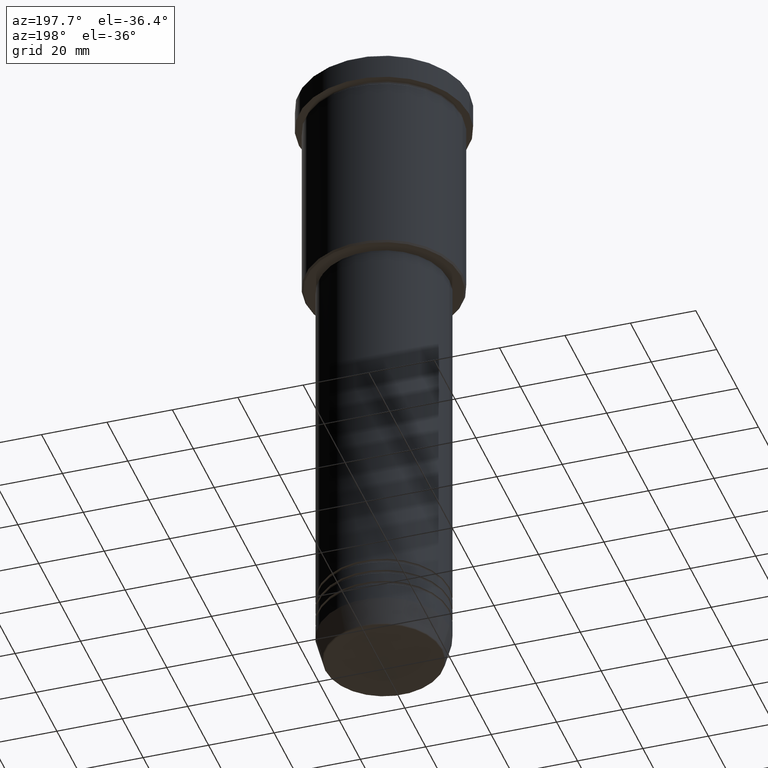
[diagram: clean part render]
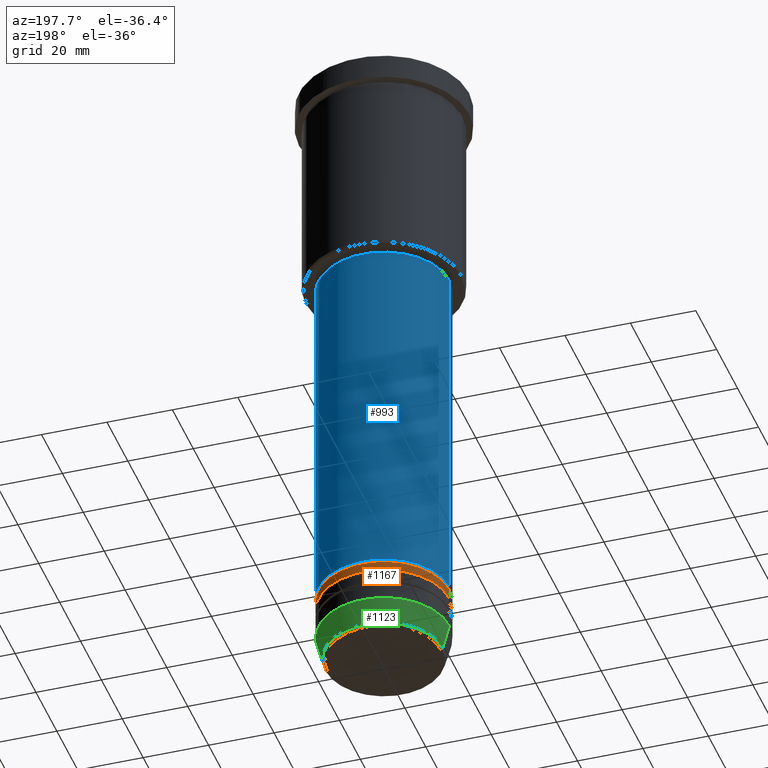
[diagram: same view with three faces highlighted in distinct colors, each labeled with its STEP entity id]
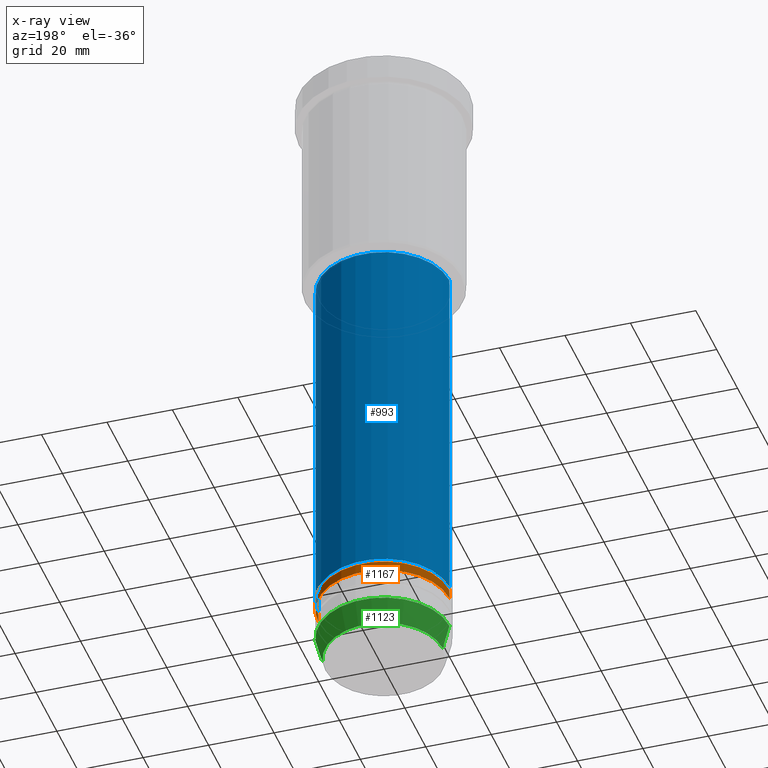
[diagram: x-ray of the same camera — body ghosted, the three highlighted faces saturated]
A machine part, auxiliary view with three faces highlighted in distinct colors.
The next image is the same camera in x-ray (body ghosted, the three faces saturated) — at least one of them is partly hidden behind the body in this view.
Their STEP definitions:

[orange] entity #1167 — the highlighted cylindrical surface (partial cylindrical patch) has radius 20 mm, axis along (-0, -0, 1).
#8 = DIRECTION ( 'NONE',  ( -0.000000000000000000, -0.000000000000000000, 1.000000000000000000 ) ) ;
#39 = CARTESIAN_POINT ( 'NONE',  ( 0.000000000000000000, 0.000000000000000000, -179.0000000000000284 ) ) ;
#41 = AXIS2_PLACEMENT_3D ( 'NONE', #438, #1088, #1172 ) ;
#56 = CARTESIAN_POINT ( 'NONE',  ( 20.00000000000000000, 0.000000000000000000, -179.0000000000000284 ) ) ;
#90 = DIRECTION ( 'NONE',  ( -0.000000000000000000, -0.000000000000000000, 1.000000000000000000 ) ) ;
#176 = EDGE_CURVE ( 'NONE', #481, #788, #912, .T. ) ;
#211 = ORIENTED_EDGE ( 'NONE', *, *, #772, .F. ) ;
#295 = CYLINDRICAL_SURFACE ( 'NONE', #1080, 20.00000000000000355 ) ;
#353 = DIRECTION ( 'NONE',  ( -0.000000000000000000, -0.000000000000000000, 1.000000000000000000 ) ) ;
#381 = FACE_OUTER_BOUND ( 'NONE', #887, .T. ) ;
#408 = EDGE_CURVE ( 'NONE', #526, #788, #809, .T. ) ;
#438 = CARTESIAN_POINT ( 'NONE',  ( 0.000000000000000000, 0.000000000000000000, -182.0000000000000284 ) ) ;
#449 = CARTESIAN_POINT ( 'NONE',  ( -20.00000000000000355, 2.449293598294706907E-15, 0.000000000000000000 ) ) ;
#478 = ORIENTED_EDGE ( 'NONE', *, *, #408, .F. ) ;
#481 = VERTEX_POINT ( 'NONE', #959 ) ;
#507 = DIRECTION ( 'NONE',  ( -0.000000000000000000, -0.000000000000000000, 1.000000000000000000 ) ) ;
#517 = VECTOR ( 'NONE', #353, 1000.000000000000000 ) ;
#526 = VERTEX_POINT ( 'NONE', #56 ) ;
#574 = DIRECTION ( 'NONE',  ( 1.000000000000000000, 0.000000000000000000, 0.000000000000000000 ) ) ;
#583 = EDGE_CURVE ( 'NONE', #1000, #481, #1078, .T. ) ;
#593 = AXIS2_PLACEMENT_3D ( 'NONE', #39, #507, #574 ) ;
#664 = ORIENTED_EDGE ( 'NONE', *, *, #176, .T. ) ;
#732 = LINE ( 'NONE', #1178, #1040 ) ;
#772 = EDGE_CURVE ( 'NONE', #1000, #526, #732, .T. ) ;
#788 = VERTEX_POINT ( 'NONE', #953 ) ;
#809 = CIRCLE ( 'NONE', #593, 20.00000000000000000 ) ;
#887 = EDGE_LOOP ( 'NONE', ( #1103, #664, #478, #211 ) ) ;
#912 = LINE ( 'NONE', #449, #517 ) ;
#932 = CARTESIAN_POINT ( 'NONE',  ( 0.000000000000000000, 0.000000000000000000, 0.000000000000000000 ) ) ;
#951 = DIRECTION ( 'NONE',  ( 1.000000000000000000, 0.000000000000000000, 0.000000000000000000 ) ) ;
#953 = CARTESIAN_POINT ( 'NONE',  ( -20.00000000000000000, 2.449293598294706513E-15, -179.0000000000000284 ) ) ;
#959 = CARTESIAN_POINT ( 'NONE',  ( -20.00000000000000355, 2.449293598294706907E-15, -182.0000000000000284 ) ) ;
#1000 = VERTEX_POINT ( 'NONE', #1151 ) ;
#1040 = VECTOR ( 'NONE', #8, 1000.000000000000000 ) ;
#1078 = CIRCLE ( 'NONE', #41, 20.00000000000000355 ) ;
#1080 = AXIS2_PLACEMENT_3D ( 'NONE', #932, #90, #951 ) ;
#1088 = DIRECTION ( 'NONE',  ( -0.000000000000000000, -0.000000000000000000, 1.000000000000000000 ) ) ;
#1103 = ORIENTED_EDGE ( 'NONE', *, *, #583, .T. ) ;
#1151 = CARTESIAN_POINT ( 'NONE',  ( 20.00000000000000355, 0.000000000000000000, -182.0000000000000284 ) ) ;
#1167 = ADVANCED_FACE ( 'NONE', ( #381 ), #295, .T. ) ;
#1172 = DIRECTION ( 'NONE',  ( 1.000000000000000000, 0.000000000000000000, 0.000000000000000000 ) ) ;
#1178 = CARTESIAN_POINT ( 'NONE',  ( 20.00000000000000355, 0.000000000000000000, 0.000000000000000000 ) ) ;

[blue] entity #993 — the highlighted cylindrical surface (partial cylindrical patch) has radius 20 mm, axis along (-0, -0, 1).
#19 = EDGE_LOOP ( 'NONE', ( #876, #153, #370, #503 ) ) ;
#49 = LINE ( 'NONE', #765, #212 ) ;
#54 = EDGE_CURVE ( 'NONE', #419, #1072, #707, .T. ) ;
#60 = EDGE_CURVE ( 'NONE', #718, #687, #49, .T. ) ;
#96 = AXIS2_PLACEMENT_3D ( 'NONE', #762, #1129, #499 ) ;
#127 = DIRECTION ( 'NONE',  ( -0.000000000000000000, -0.000000000000000000, 1.000000000000000000 ) ) ;
#136 = AXIS2_PLACEMENT_3D ( 'NONE', #789, #919, #974 ) ;
#153 = ORIENTED_EDGE ( 'NONE', *, *, #54, .T. ) ;
#212 = VECTOR ( 'NONE', #127, 1000.000000000000000 ) ;
#218 = CARTESIAN_POINT ( 'NONE',  ( 0.000000000000000000, 0.000000000000000000, -178.0000000000000284 ) ) ;
#293 = DIRECTION ( 'NONE',  ( 1.000000000000000000, 0.000000000000000000, 0.000000000000000000 ) ) ;
#336 = DIRECTION ( 'NONE',  ( -0.000000000000000000, -0.000000000000000000, 1.000000000000000000 ) ) ;
#370 = ORIENTED_EDGE ( 'NONE', *, *, #800, .F. ) ;
#419 = VERTEX_POINT ( 'NONE', #590 ) ;
#445 = CIRCLE ( 'NONE', #96, 20.00000000000000355 ) ;
#467 = EDGE_CURVE ( 'NONE', #718, #419, #733, .T. ) ;
#499 = DIRECTION ( 'NONE',  ( 1.000000000000000000, 0.000000000000000000, 0.000000000000000000 ) ) ;
#503 = ORIENTED_EDGE ( 'NONE', *, *, #60, .F. ) ;
#532 = FACE_OUTER_BOUND ( 'NONE', #19, .T. ) ;
#590 = CARTESIAN_POINT ( 'NONE',  ( -20.00000000000000355, 2.449293598294706907E-15, -178.0000000000000284 ) ) ;
#687 = VERTEX_POINT ( 'NONE', #1107 ) ;
#707 = LINE ( 'NONE', #1052, #1018 ) ;
#718 = VERTEX_POINT ( 'NONE', #926 ) ;
#733 = CIRCLE ( 'NONE', #1023, 20.00000000000000355 ) ;
#762 = CARTESIAN_POINT ( 'NONE',  ( 0.000000000000000000, 0.000000000000000000, -67.00000000000002842 ) ) ;
#765 = CARTESIAN_POINT ( 'NONE',  ( 20.00000000000000355, 0.000000000000000000, 0.000000000000000000 ) ) ;
#789 = CARTESIAN_POINT ( 'NONE',  ( 0.000000000000000000, 0.000000000000000000, 0.000000000000000000 ) ) ;
#800 = EDGE_CURVE ( 'NONE', #687, #1072, #445, .T. ) ;
#825 = CARTESIAN_POINT ( 'NONE',  ( -20.00000000000000355, 2.449293598294706907E-15, -67.00000000000002842 ) ) ;
#876 = ORIENTED_EDGE ( 'NONE', *, *, #467, .T. ) ;
#886 = CYLINDRICAL_SURFACE ( 'NONE', #136, 20.00000000000000355 ) ;
#919 = DIRECTION ( 'NONE',  ( -0.000000000000000000, -0.000000000000000000, 1.000000000000000000 ) ) ;
#926 = CARTESIAN_POINT ( 'NONE',  ( 20.00000000000000355, 0.000000000000000000, -178.0000000000000284 ) ) ;
#954 = DIRECTION ( 'NONE',  ( -0.000000000000000000, -0.000000000000000000, 1.000000000000000000 ) ) ;
#974 = DIRECTION ( 'NONE',  ( 1.000000000000000000, 0.000000000000000000, 0.000000000000000000 ) ) ;
#993 = ADVANCED_FACE ( 'NONE', ( #532 ), #886, .T. ) ;
#1018 = VECTOR ( 'NONE', #336, 1000.000000000000000 ) ;
#1023 = AXIS2_PLACEMENT_3D ( 'NONE', #218, #954, #293 ) ;
#1052 = CARTESIAN_POINT ( 'NONE',  ( -20.00000000000000355, 2.449293598294706907E-15, 0.000000000000000000 ) ) ;
#1072 = VERTEX_POINT ( 'NONE', #825 ) ;
#1107 = CARTESIAN_POINT ( 'NONE',  ( 20.00000000000000355, 0.000000000000000000, -67.00000000000002842 ) ) ;
#1129 = DIRECTION ( 'NONE',  ( -0.000000000000000000, -0.000000000000000000, 1.000000000000000000 ) ) ;

[green] entity #1123 — the highlighted conical surface has half-angle 15 deg.
#38 = EDGE_CURVE ( 'NONE', #941, #1020, #107, .T. ) ;
#107 = LINE ( 'NONE', #515, #848 ) ;
#137 = CARTESIAN_POINT ( 'NONE',  ( 20.00000000000000355, 0.000000000000000000, -192.0000000000000284 ) ) ;
#149 = ORIENTED_EDGE ( 'NONE', *, *, #969, .F. ) ;
#171 = VECTOR ( 'NONE', #238, 1000.000000000000000 ) ;
#199 = CARTESIAN_POINT ( 'NONE',  ( 20.00000000000000355, 0.000000000000000000, -192.0000000000000284 ) ) ;
#206 = FACE_OUTER_BOUND ( 'NONE', #1017, .T. ) ;
#216 = CIRCLE ( 'NONE', #870, 20.00000000000000355 ) ;
#238 = DIRECTION ( 'NONE',  ( 0.2588190451025213501, 0.000000000000000000, 0.9659258262890680902 ) ) ;
#288 = DIRECTION ( 'NONE',  ( -0.000000000000000000, -0.000000000000000000, 1.000000000000000000 ) ) ;
#297 = ORIENTED_EDGE ( 'NONE', *, *, #301, .T. ) ;
#301 = EDGE_CURVE ( 'NONE', #722, #941, #402, .T. ) ;
#377 = CARTESIAN_POINT ( 'NONE',  ( 0.000000000000000000, 0.000000000000000000, -199.6294095225512990 ) ) ;
#402 = CIRCLE ( 'NONE', #1136, 17.95570587970607690 ) ;
#455 = DIRECTION ( 'NONE',  ( -0.000000000000000000, -0.000000000000000000, 1.000000000000000000 ) ) ;
#476 = DIRECTION ( 'NONE',  ( -0.000000000000000000, -0.000000000000000000, 1.000000000000000000 ) ) ;
#485 = CARTESIAN_POINT ( 'NONE',  ( 0.000000000000000000, 0.000000000000000000, -192.0000000000000284 ) ) ;
#515 = CARTESIAN_POINT ( 'NONE',  ( -20.00000000000000355, 2.449293598294706907E-15, -192.0000000000000284 ) ) ;
#553 = ORIENTED_EDGE ( 'NONE', *, *, #38, .T. ) ;
#598 = AXIS2_PLACEMENT_3D ( 'NONE', #485, #476, #854 ) ;
#659 = DIRECTION ( 'NONE',  ( 1.000000000000000000, 0.000000000000000000, 0.000000000000000000 ) ) ;
#722 = VERTEX_POINT ( 'NONE', #723 ) ;
#723 = CARTESIAN_POINT ( 'NONE',  ( 17.95570587970607690, 0.000000000000000000, -199.6294095225512990 ) ) ;
#766 = EDGE_CURVE ( 'NONE', #1145, #1020, #216, .T. ) ;
#828 = CARTESIAN_POINT ( 'NONE',  ( 0.000000000000000000, 0.000000000000000000, -192.0000000000000284 ) ) ;
#835 = CONICAL_SURFACE ( 'NONE', #598, 20.00000000000000355, 0.2617993877991500740 ) ;
#848 = VECTOR ( 'NONE', #1163, 1000.000000000000000 ) ;
#854 = DIRECTION ( 'NONE',  ( 1.000000000000000000, 0.000000000000000000, 0.000000000000000000 ) ) ;
#870 = AXIS2_PLACEMENT_3D ( 'NONE', #828, #288, #659 ) ;
#929 = DIRECTION ( 'NONE',  ( 1.000000000000000000, 0.000000000000000000, 0.000000000000000000 ) ) ;
#941 = VERTEX_POINT ( 'NONE', #1156 ) ;
#967 = CARTESIAN_POINT ( 'NONE',  ( -20.00000000000000355, 2.449293598294706907E-15, -192.0000000000000284 ) ) ;
#969 = EDGE_CURVE ( 'NONE', #722, #1145, #998, .T. ) ;
#998 = LINE ( 'NONE', #137, #171 ) ;
#1017 = EDGE_LOOP ( 'NONE', ( #297, #553, #1139, #149 ) ) ;
#1020 = VERTEX_POINT ( 'NONE', #967 ) ;
#1123 = ADVANCED_FACE ( 'NONE', ( #206 ), #835, .T. ) ;
#1136 = AXIS2_PLACEMENT_3D ( 'NONE', #377, #455, #929 ) ;
#1139 = ORIENTED_EDGE ( 'NONE', *, *, #766, .F. ) ;
#1145 = VERTEX_POINT ( 'NONE', #199 ) ;
#1156 = CARTESIAN_POINT ( 'NONE',  ( -17.95570587970607690, 2.324116685748021371E-15, -199.6294095225512990 ) ) ;
#1163 = DIRECTION ( 'NONE',  ( -0.2588190451025213501, 3.169619151431772337E-17, 0.9659258262890680902 ) ) ;